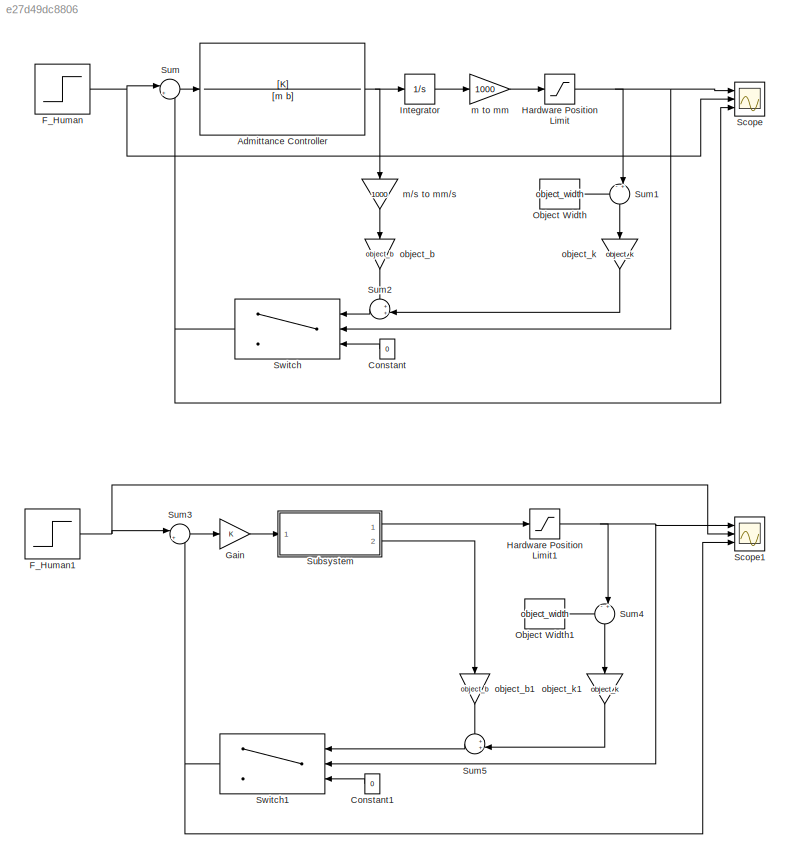
MODEL slx_e27d49dc8806
KIND model
CONFIG AbsTol = auto
CONFIG EnableMultiTasking = off
CONFIG FixedStep = dt
CONFIG MaxStep = auto
CONFIG MinStep = auto
CONFIG RelTol = 1e-3
CONFIG SampleTimeConstraint = Unconstrained
CONFIG SolverName = ode1
CONFIG StartTime = 0.0
CONFIG StopTime = 20.0
BLOCK [TransferFcn] Admittance Controller
  Denominator = [m b]
  Numerator = [K]
BLOCK [Constant] Constant
  NameLocation = top
  Value = 0
BLOCK [Constant] Constant1
  NameLocation = top
  Value = 0
BLOCK [Step] F_Human
  SampleTime = 0
BLOCK [Step] F_Human1
  SampleTime = 0
BLOCK [Gain] Gain
  Gain = K
BLOCK [Saturate] Hardware Position Limit
  LowerLimit = 0
  UpperLimit = 40
BLOCK [Saturate] Hardware Position Limit1
  LowerLimit = 0
  UpperLimit = 40
BLOCK [Integrator] Integrator
  Ports = [1, 1]
BLOCK [Constant] Object Width
  Value = object_width
BLOCK [Constant] Object Width1
  Value = object_width
BLOCK [Scope] Scope
  Floating = off
  NumInputPorts = 3
  Ports = [3]
  ScopeSpecificationString = Simulink.scopes.TimeScopeBlockCfg('CurrentConfiguration', extmgr.ConfigurationSet(extmgr.Configuration('Core','General UI',true),extmgr.Configuration('Core','Source UI',true),extmgr.Configuration('Sources','WiredSimulink',true),extmgr.Configuration('Visuals','Time Domain',true,'SerializedDisplays',{struct('MinYLimReal','-2.60853','MaxYLimReal','23.47673','YLabelReal','','MinYLimMag','0.00000','Max...<+2750ch>
BLOCK [Scope] Scope1
  Floating = off
  NumInputPorts = 3
  Ports = [3]
  ScopeSpecificationString = Simulink.scopes.TimeScopeBlockCfg('CurrentConfiguration', extmgr.ConfigurationSet(extmgr.Configuration('Core','General UI',true),extmgr.Configuration('Core','Source UI',true),extmgr.Configuration('Sources','WiredSimulink',true,'DataLoggingVariableName','ScopeData1'),extmgr.Configuration('Visuals','Time Domain',true,'SerializedDisplays',{struct('MinYLimReal','-2.57205','MaxYLimReal','23.14849','YLa...<+2794ch>
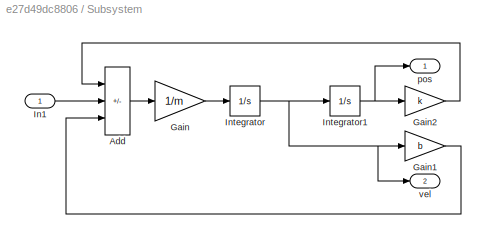
BLOCK [SubSystem] Subsystem
  Ports = [1, 2]
  RequestExecContextInheritance = off
BLOCK [Sum] Subsystem/Add
  IconShape = rectangular
  Inputs = -+-
  Ports = [3, 1]
BLOCK [Gain] Subsystem/Gain
  Gain = 1/m
BLOCK [Gain] Subsystem/Gain1
  Gain = b
BLOCK [Gain] Subsystem/Gain2
  Gain = k
BLOCK [Inport] Subsystem/In1
BLOCK [Integrator] Subsystem/Integrator
  Ports = [1, 1]
BLOCK [Integrator] Subsystem/Integrator1
  Ports = [1, 1]
BLOCK [Outport] Subsystem/pos
BLOCK [Outport] Subsystem/vel
  Port = 2
BLOCK [Sum] Sum
  Inputs = |+-
  Ports = [2, 1]
BLOCK [Sum] Sum1
  Inputs = -+|
  NameLocation = left
  Ports = [2, 1]
BLOCK [Sum] Sum2
  Inputs = ++|
  NameLocation = top
  Ports = [2, 1]
BLOCK [Sum] Sum3
  Inputs = |+-
  Ports = [2, 1]
BLOCK [Sum] Sum4
  Inputs = -+|
  NameLocation = left
  Ports = [2, 1]
BLOCK [Sum] Sum5
  Inputs = ++|
  NameLocation = top
  Ports = [2, 1]
BLOCK [Switch] Switch
  InputSameDT = off
  NameLocation = top
  SaturateOnIntegerOverflow = off
  Threshold = object_width
BLOCK [Switch] Switch1
  InputSameDT = off
  NameLocation = top
  SaturateOnIntegerOverflow = off
  Threshold = object_width
BLOCK [Gain] m to mm
  Gain = 1000
BLOCK [Gain] m//s  to mm//s
  Gain = 1000
  NameLocation = left
BLOCK [Gain] object_b
  Gain = object_b
  NameLocation = left
BLOCK [Gain] object_b1
  Gain = object_b
  NameLocation = left
BLOCK [Gain] object_k
  Gain = object_k
  NameLocation = left
BLOCK [Gain] object_k1
  Gain = object_k
  NameLocation = left
NET Admittance Controller:1 -> Integrator:1, m//s  to mm//s:1
LINE Constant1:1 -> Switch1:3
LINE Constant:1 -> Switch:3
NET F_Human1:1 -> Scope1:2, Sum3:1
NET F_Human:1 -> Scope:2, Sum:1
LINE Gain:1 -> Subsystem:1
NET Hardware Position Limit1:1 -> Scope1:1, Sum4:2, Switch1:2
NET Hardware Position Limit:1 -> Scope:1, Sum1:2, Switch:2
LINE Integrator:1 -> m to mm:1
LINE Object Width1:1 -> Sum4:1
LINE Object Width:1 -> Sum1:1
LINE Subsystem/Add:1 -> Subsystem/Gain:1
LINE Subsystem/Gain1:1 -> Subsystem/Add:3
LINE Subsystem/Gain2:1 -> Subsystem/Add:1
LINE Subsystem/Gain:1 -> Subsystem/Integrator:1
LINE Subsystem/In1:1 -> Subsystem/Add:2
NET Subsystem/Integrator1:1 -> Subsystem/Gain2:1, Subsystem/pos:1
NET Subsystem/Integrator:1 -> Subsystem/Gain1:1, Subsystem/Integrator1:1, Subsystem/vel:1
LINE Subsystem:1 -> Hardware Position Limit1:1
LINE Subsystem:2 -> object_b1:1
LINE Sum1:1 -> object_k:1
LINE Sum2:1 -> Switch:1
LINE Sum3:1 -> Gain:1
LINE Sum4:1 -> object_k1:1
LINE Sum5:1 -> Switch1:1
LINE Sum:1 -> Admittance Controller:1
NET Switch1:1 -> Scope1:3, Sum3:2
NET Switch:1 -> Scope:3, Sum:2
LINE m to mm:1 -> Hardware Position Limit:1
LINE m//s  to mm//s:1 -> object_b:1
LINE object_b1:1 -> Sum5:1
LINE object_b:1 -> Sum2:1
LINE object_k1:1 -> Sum5:2
LINE object_k:1 -> Sum2:2
note: NET lines group one-source signal fan-out (src -> all destinations, sorted); 1:1 wires keep LINE
